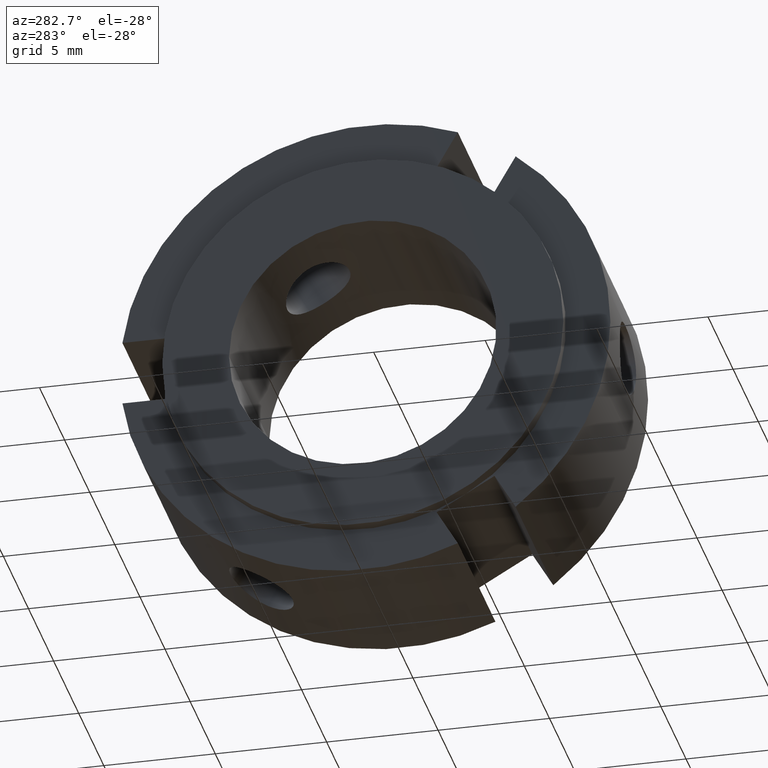
[diagram: clean part render]
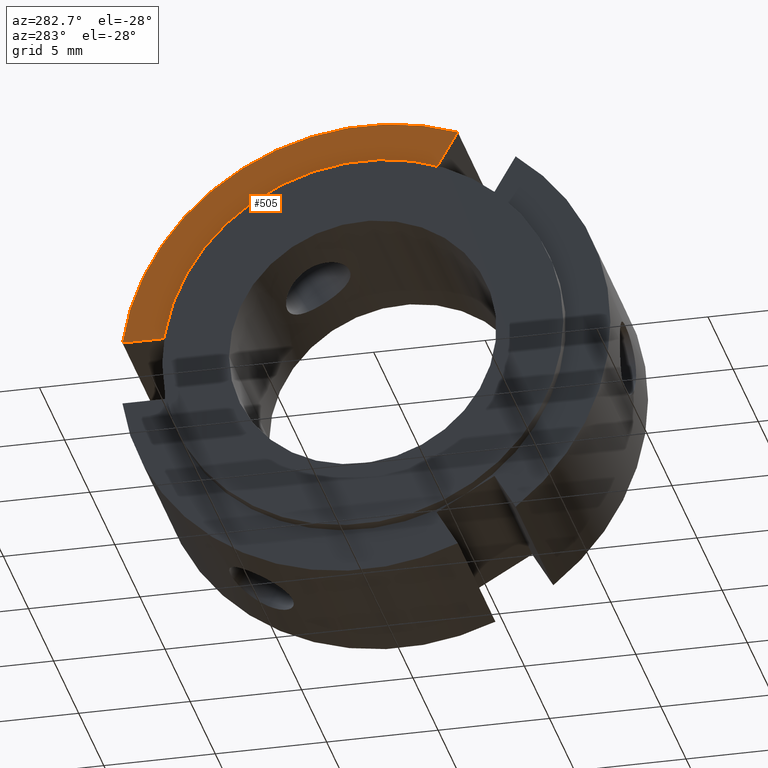
[diagram: same view with one face highlighted and labeled with its STEP entity id]
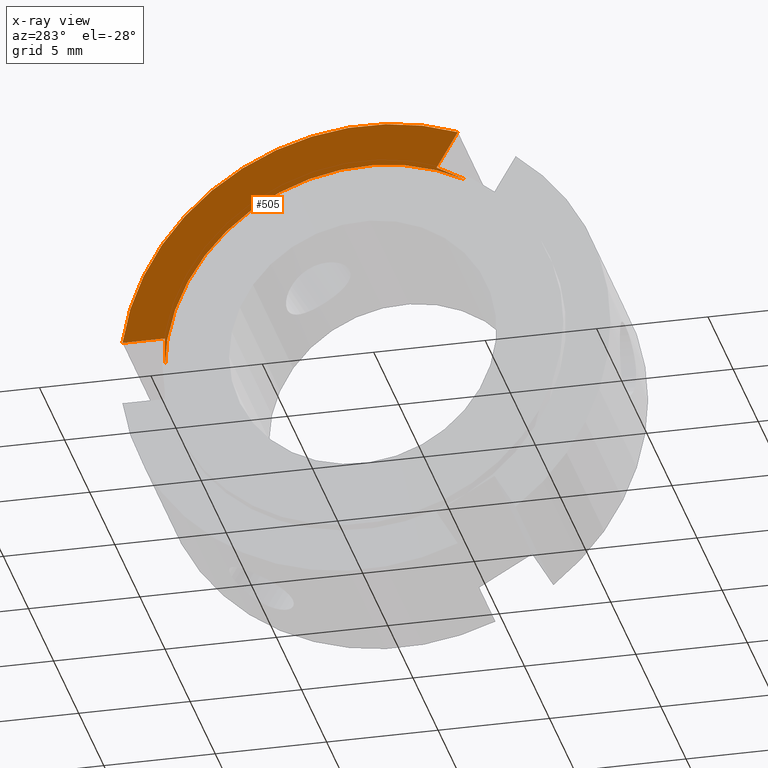
[diagram: x-ray of the same camera — body ghosted, the highlighted face saturated]
A machine part, auxiliary view. The second image highlights one B-rep face of the part: STEP entity #505.
The next image is the same camera in x-ray: the body ghosted, the highlighted face saturated — about 0% of this face is hidden behind the body in this view.
In plain terms, the highlighted planar face has unit normal (-1, 0, 0).
Its self-contained STEP definition (entity closure, byte-faithful):
#271=CARTESIAN_POINT('',(0.499999999999998,-3.200961894323340,8.544228634059948));
#272=VERTEX_POINT('',#271);
#273=CARTESIAN_POINT('',(0.499999999999998,-4.149585573749180,10.187293044088436));
#274=VERTEX_POINT('',#273);
#275=CARTESIAN_POINT('',(0.499999999999998,-3.200961894323341,8.544228634059950));
#276=DIRECTION('',(0.0,-0.500000000000000,0.866025403784438));
#277=VECTOR('',#276,1.897247358851681);
#278=LINE('',#275,#277);
#279=EDGE_CURVE('',#272,#274,#278,.T.);
#351=CARTESIAN_POINT('',(0.499999999999998,-4.499999999999998,7.794228634059948));
#352=VERTEX_POINT('',#351);
#367=CARTESIAN_POINT('',(0.499999999999999,-4.500000000000000,7.794228634059949));
#368=DIRECTION('',(0.0,0.866025403784439,0.500000000000000));
#369=VECTOR('',#368,1.500000000000001);
#370=LINE('',#367,#369);
#371=EDGE_CURVE('',#352,#272,#370,.T.);
#464=CARTESIAN_POINT('',(0.499999999999998,9.999999999999998,0.0));
#465=DIRECTION('',(-1.0,0.0,0.0));
#466=DIRECTION('',(0.0,0.0,1.0));
#467=AXIS2_PLACEMENT_3D('',#464,#465,#466);
#468=PLANE('',#467);
#469=ORIENTED_EDGE('',*,*,#371,.T.);
#470=ORIENTED_EDGE('',*,*,#279,.T.);
#471=CARTESIAN_POINT('',(0.499999999999998,10.897247358851681,1.500000000000000));
#472=VERTEX_POINT('',#471);
#473=CARTESIAN_POINT('',(0.499999999999998,0.0,0.0));
#474=DIRECTION('',(1.0,0.0,0.0));
#475=DIRECTION('',(0.0,1.0,0.0));
#476=AXIS2_PLACEMENT_3D('',#473,#474,#475);
#477=CIRCLE('',#476,10.999999999999996);
#478=EDGE_CURVE('',#472,#274,#477,.T.);
#479=ORIENTED_EDGE('',*,*,#478,.F.);
#480=CARTESIAN_POINT('',(0.499999999999998,9.0,1.500000000000000));
#481=VERTEX_POINT('',#480);
#482=CARTESIAN_POINT('',(0.499999999999998,10.897247358851681,1.500000000000000));
#483=DIRECTION('',(0.0,-1.0,0.0));
#484=VECTOR('',#483,1.897247358851681);
#485=LINE('',#482,#484);
#486=EDGE_CURVE('',#472,#481,#485,.T.);
#487=ORIENTED_EDGE('',*,*,#486,.T.);
#488=CARTESIAN_POINT('',(0.499999999999998,8.999999999999998,0.0));
#489=VERTEX_POINT('',#488);
#490=CARTESIAN_POINT('',(0.499999999999998,9.0,1.500000000000000));
#491=DIRECTION('',(0.0,0.0,-1.0));
#492=VECTOR('',#491,1.500000000000000);
#493=LINE('',#490,#492);
#494=EDGE_CURVE('',#481,#489,#493,.T.);
#495=ORIENTED_EDGE('',*,*,#494,.T.);
#496=CARTESIAN_POINT('',(0.499999999999998,0.0,0.0));
#497=DIRECTION('',(1.0,0.0,0.0));
#498=DIRECTION('',(0.0,1.0,0.0));
#499=AXIS2_PLACEMENT_3D('',#496,#497,#498);
#500=CIRCLE('',#499,8.999999999999998);
#501=EDGE_CURVE('',#489,#352,#500,.T.);
#502=ORIENTED_EDGE('',*,*,#501,.T.);
#503=EDGE_LOOP('',(#469,#470,#479,#487,#495,#502));
#504=FACE_OUTER_BOUND('',#503,.T.);
#505=ADVANCED_FACE('',(#504),#468,.T.);